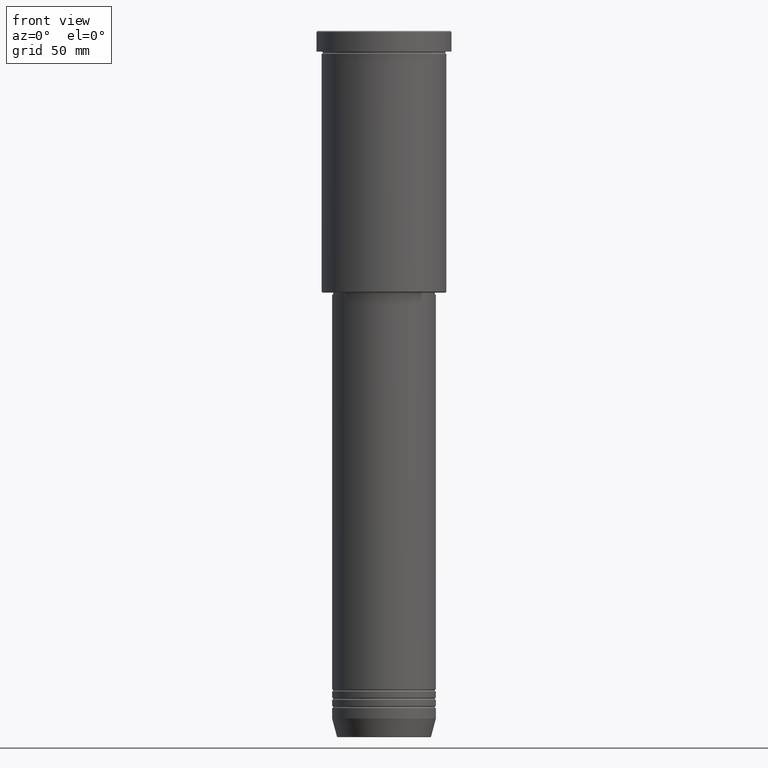
[diagram: clean part render]
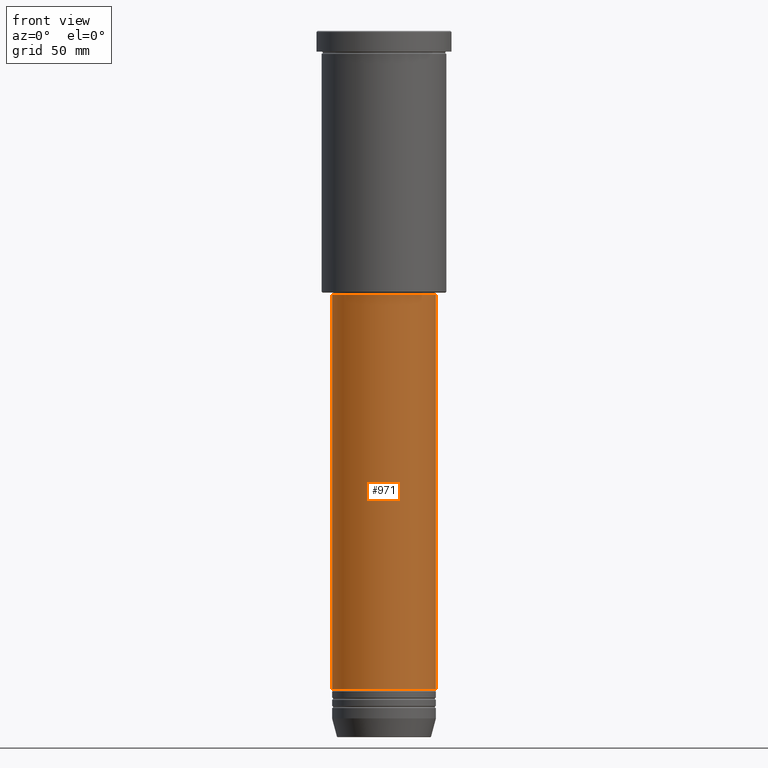
[diagram: same view with one face highlighted and labeled with its STEP entity id]
A machine part, front view. The second image highlights one B-rep face of the part: STEP entity #971.
In plain terms, the highlighted cylindrical surface (partial cylindrical patch) has radius 25 mm, axis along (-0, -0, 1).
Its self-contained STEP definition (entity closure, byte-faithful):
#11 = CARTESIAN_POINT ( 'NONE',  ( -25.00000000000000355, 3.061616997868383437E-15, 0.000000000000000000 ) ) ;
#28 = FACE_OUTER_BOUND ( 'NONE', #180, .T. ) ;
#55 = VERTEX_POINT ( 'NONE', #390 ) ;
#57 = CARTESIAN_POINT ( 'NONE',  ( 25.00000000000000000, 0.000000000000000000, -317.0000000000000568 ) ) ;
#129 = ORIENTED_EDGE ( 'NONE', *, *, #301, .T. ) ;
#180 = EDGE_LOOP ( 'NONE', ( #521, #340, #129, #329 ) ) ;
#206 = CARTESIAN_POINT ( 'NONE',  ( 0.000000000000000000, 0.000000000000000000, -126.9999999999999147 ) ) ;
#228 = CARTESIAN_POINT ( 'NONE',  ( 0.000000000000000000, 0.000000000000000000, 0.000000000000000000 ) ) ;
#256 = DIRECTION ( 'NONE',  ( -0.000000000000000000, -0.000000000000000000, 1.000000000000000000 ) ) ;
#274 = CIRCLE ( 'NONE', #411, 25.00000000000000000 ) ;
#285 = EDGE_CURVE ( 'NONE', #55, #932, #1047, .T. ) ;
#289 = CARTESIAN_POINT ( 'NONE',  ( -25.00000000000000000, 3.061616997868383437E-15, -317.0000000000000568 ) ) ;
#301 = EDGE_CURVE ( 'NONE', #803, #932, #745, .T. ) ;
#329 = ORIENTED_EDGE ( 'NONE', *, *, #285, .F. ) ;
#340 = ORIENTED_EDGE ( 'NONE', *, *, #1093, .T. ) ;
#368 = CYLINDRICAL_SURFACE ( 'NONE', #788, 25.00000000000000355 ) ;
#378 = DIRECTION ( 'NONE',  ( -0.000000000000000000, -0.000000000000000000, 1.000000000000000000 ) ) ;
#390 = CARTESIAN_POINT ( 'NONE',  ( -25.00000000000001066, 3.061616997868384226E-15, -126.9999999999999147 ) ) ;
#411 = AXIS2_PLACEMENT_3D ( 'NONE', #796, #256, #885 ) ;
#465 = VECTOR ( 'NONE', #378, 1000.000000000000000 ) ;
#521 = ORIENTED_EDGE ( 'NONE', *, *, #1170, .F. ) ;
#571 = VERTEX_POINT ( 'NONE', #289 ) ;
#643 = DIRECTION ( 'NONE',  ( 1.000000000000000000, 0.000000000000000000, 0.000000000000000000 ) ) ;
#725 = DIRECTION ( 'NONE',  ( -0.000000000000000000, -0.000000000000000000, 1.000000000000000000 ) ) ;
#731 = CARTESIAN_POINT ( 'NONE',  ( 25.00000000000000355, 0.000000000000000000, 0.000000000000000000 ) ) ;
#745 = LINE ( 'NONE', #731, #465 ) ;
#760 = DIRECTION ( 'NONE',  ( -0.000000000000000000, -0.000000000000000000, 1.000000000000000000 ) ) ;
#770 = AXIS2_PLACEMENT_3D ( 'NONE', #206, #909, #643 ) ;
#788 = AXIS2_PLACEMENT_3D ( 'NONE', #228, #760, #1052 ) ;
#796 = CARTESIAN_POINT ( 'NONE',  ( 0.000000000000000000, 0.000000000000000000, -317.0000000000000568 ) ) ;
#803 = VERTEX_POINT ( 'NONE', #57 ) ;
#885 = DIRECTION ( 'NONE',  ( 1.000000000000000000, 0.000000000000000000, 0.000000000000000000 ) ) ;
#907 = VECTOR ( 'NONE', #725, 1000.000000000000000 ) ;
#909 = DIRECTION ( 'NONE',  ( -0.000000000000000000, -0.000000000000000000, 1.000000000000000000 ) ) ;
#932 = VERTEX_POINT ( 'NONE', #982 ) ;
#971 = ADVANCED_FACE ( 'NONE', ( #28 ), #368, .T. ) ;
#982 = CARTESIAN_POINT ( 'NONE',  ( 25.00000000000000711, 0.000000000000000000, -126.9999999999999147 ) ) ;
#1047 = CIRCLE ( 'NONE', #770, 25.00000000000000711 ) ;
#1052 = DIRECTION ( 'NONE',  ( 1.000000000000000000, 0.000000000000000000, 0.000000000000000000 ) ) ;
#1083 = LINE ( 'NONE', #11, #907 ) ;
#1093 = EDGE_CURVE ( 'NONE', #571, #803, #274, .T. ) ;
#1170 = EDGE_CURVE ( 'NONE', #571, #55, #1083, .T. ) ;